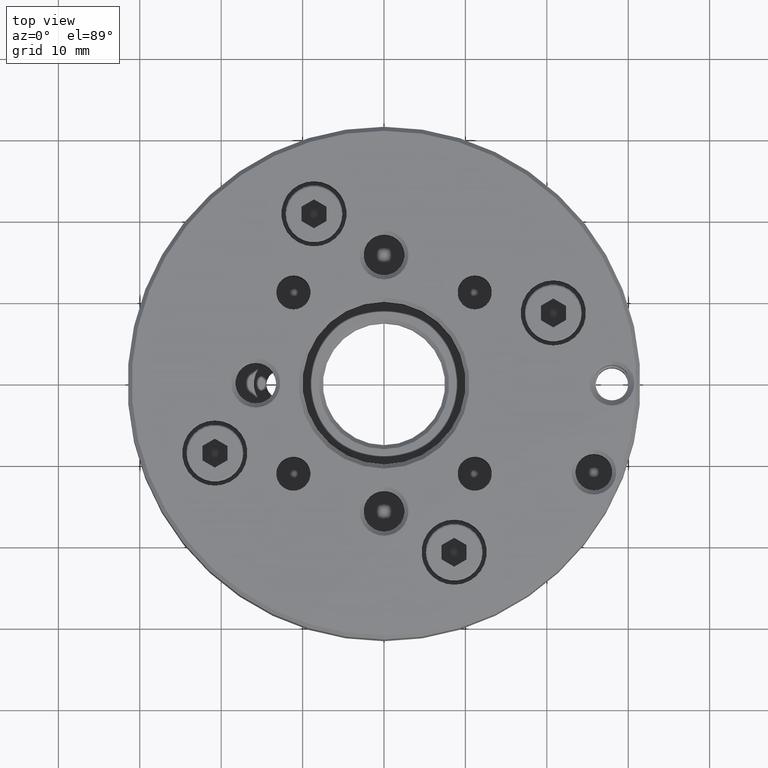
[diagram: clean part render]
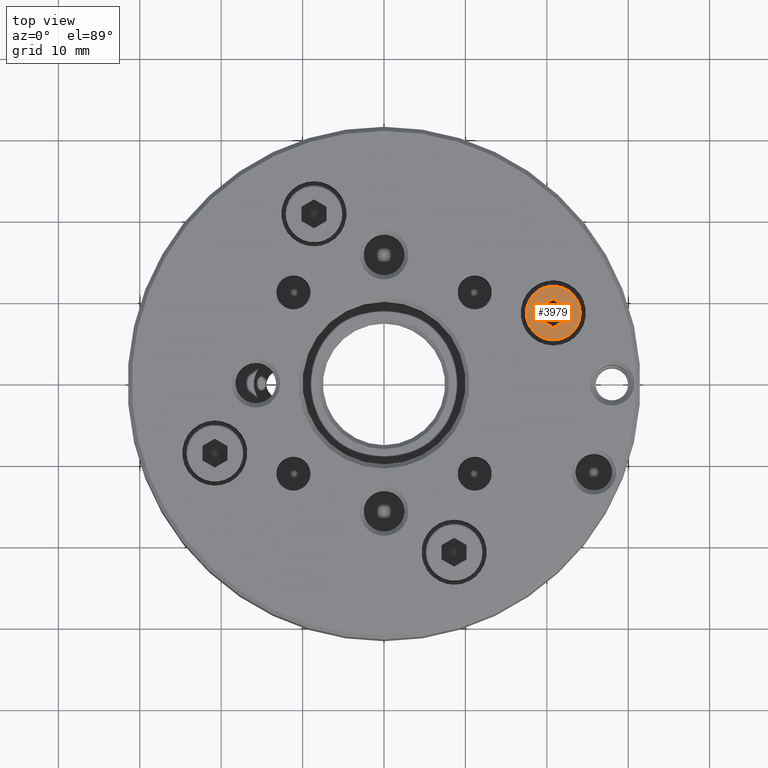
[diagram: same view with one face highlighted and labeled with its STEP entity id]
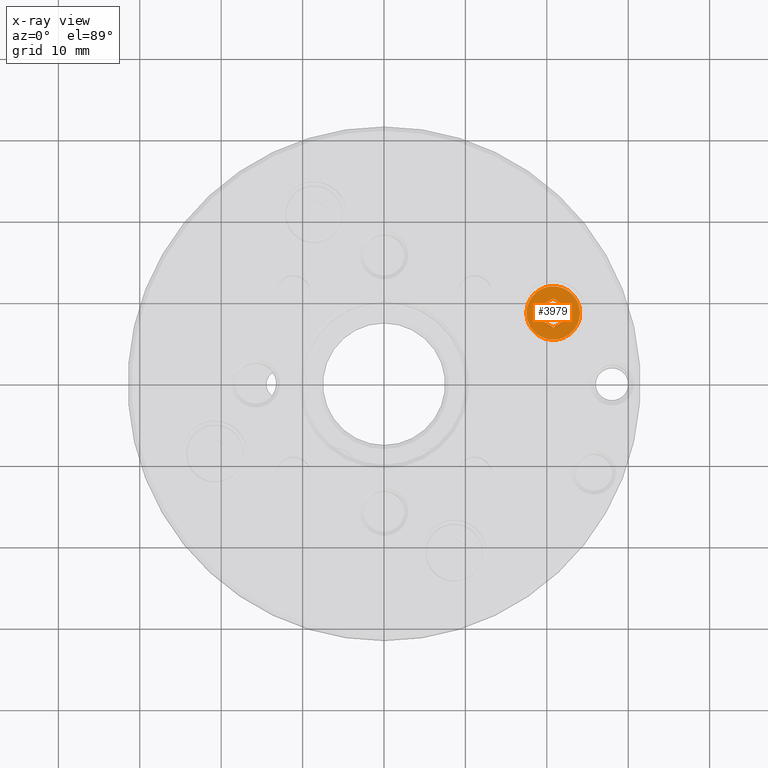
[diagram: x-ray of the same camera — body ghosted, the highlighted face saturated]
A machine part, top view. The second image highlights one B-rep face of the part: STEP entity #3979.
The next image is the same camera in x-ray: the body ghosted, the highlighted face saturated — about 0% of this face is hidden behind the body in this view.
In plain terms, the highlighted planar face has unit normal (-0, -0, -1).
Its self-contained STEP definition (entity closure, byte-faithful):
#156 = VERTEX_POINT ( 'NONE', #5082 ) ;
#312 = DIRECTION ( 'NONE',  ( 0.8660254037844385966, 0.5000000000000001110, -9.614813431917819082E-17 ) ) ;
#404 = DIRECTION ( 'NONE',  ( 0.8660254037844388186, -0.4999999999999996114, -9.614813431917821547E-17 ) ) ;
#473 = CIRCLE ( 'NONE', #5444, 3.300000000000000711 ) ;
#668 = DIRECTION ( 'NONE',  ( 1.000000000000000000, 0.0000000000000000000, 0.0000000000000000000 ) ) ;
#707 = ORIENTED_EDGE ( 'NONE', *, *, #1335, .F. ) ;
#821 = CARTESIAN_POINT ( 'NONE',  ( 19.25178948150396963, 9.496898566555165289, 6.099999999999997868 ) ) ;
#1013 = DIRECTION ( 'NONE',  ( 1.110223024625156540E-16, 3.639924891758125864E-42, 1.000000000000000000 ) ) ;
#1030 = VECTOR ( 'NONE', #404, 1000.000000000000000 ) ;
#1038 = VERTEX_POINT ( 'NONE', #4874 ) ;
#1098 = ORIENTED_EDGE ( 'NONE', *, *, #1667, .T. ) ;
#1230 = EDGE_CURVE ( 'NONE', #3201, #2115, #5042, .T. ) ;
#1335 = EDGE_CURVE ( 'NONE', #156, #1542, #6252, .T. ) ;
#1421 = FACE_OUTER_BOUND ( 'NONE', #4130, .T. ) ;
#1476 = ORIENTED_EDGE ( 'NONE', *, *, #4529, .F. ) ;
#1524 = ORIENTED_EDGE ( 'NONE', *, *, #1639, .T. ) ;
#1542 = VERTEX_POINT ( 'NONE', #2972 ) ;
#1549 = CARTESIAN_POINT ( 'NONE',  ( 20.78728948150396860, 10.38341990489583821, 6.099999999999997868 ) ) ;
#1639 = EDGE_CURVE ( 'NONE', #5673, #1855, #2000, .T. ) ;
#1667 = EDGE_CURVE ( 'NONE', #1855, #5673, #473, .T. ) ;
#1702 = EDGE_CURVE ( 'NONE', #1038, #5080, #5190, .T. ) ;
#1797 = VECTOR ( 'NONE', #2883, 1000.000000000000000 ) ;
#1855 = VERTEX_POINT ( 'NONE', #5321 ) ;
#1986 = CARTESIAN_POINT ( 'NONE',  ( 19.25178948150396963, 7.723855889873823877, 6.099999999999997868 ) ) ;
#2000 = CIRCLE ( 'NONE', #2533, 3.300000000000000711 ) ;
#2115 = VERTEX_POINT ( 'NONE', #4809 ) ;
#2117 = ORIENTED_EDGE ( 'NONE', *, *, #5228, .F. ) ;
#2201 = DIRECTION ( 'NONE',  ( -3.668954571972872844E-16, 1.000000000000000000, 4.073357841744026732E-32 ) ) ;
#2307 = EDGE_LOOP ( 'NONE', ( #1476, #4750, #5711, #2413, #2117, #707 ) ) ;
#2363 = VECTOR ( 'NONE', #5710, 1000.000000000000114 ) ;
#2413 = ORIENTED_EDGE ( 'NONE', *, *, #1702, .F. ) ;
#2533 = AXIS2_PLACEMENT_3D ( 'NONE', #5636, #1013, #3072 ) ;
#2622 = CARTESIAN_POINT ( 'NONE',  ( 20.78728948150396860, 8.610377228214495915, 6.099999999999997868 ) ) ;
#2752 = VECTOR ( 'NONE', #2201, 1000.000000000000000 ) ;
#2791 = CARTESIAN_POINT ( 'NONE',  ( 20.78728948150397215, 6.837334551533154503, 6.099999999999997868 ) ) ;
#2843 = LINE ( 'NONE', #821, #1797 ) ;
#2883 = DIRECTION ( 'NONE',  ( 6.114924286621454082E-16, -1.000000000000000000, -6.788929736482705656E-32 ) ) ;
#2972 = CARTESIAN_POINT ( 'NONE',  ( 22.32278948150396758, 9.496898566555168841, 6.099999999999997868 ) ) ;
#3072 = DIRECTION ( 'NONE',  ( 1.000000000000000000, 0.0000000000000000000, 0.0000000000000000000 ) ) ;
#3169 = DIRECTION ( 'NONE',  ( 1.110223024625156540E-16, 3.639924891758125864E-42, 1.000000000000000000 ) ) ;
#3201 = VERTEX_POINT ( 'NONE', #1986 ) ;
#3516 = PLANE ( 'NONE',  #5910 ) ;
#3614 = VECTOR ( 'NONE', #5799, 1000.000000000000227 ) ;
#3758 = LINE ( 'NONE', #4640, #2363 ) ;
#3832 = VECTOR ( 'NONE', #312, 1000.000000000000114 ) ;
#3838 = LINE ( 'NONE', #2791, #3832 ) ;
#3979 = ADVANCED_FACE ( 'NONE', ( #1421, #5137 ), #3516, .F. ) ;
#4130 = EDGE_LOOP ( 'NONE', ( #1524, #1098 ) ) ;
#4529 = EDGE_CURVE ( 'NONE', #2115, #156, #3838, .T. ) ;
#4605 = CARTESIAN_POINT ( 'NONE',  ( 19.25178948150396963, 7.723855889873823877, 6.099999999999997868 ) ) ;
#4640 = CARTESIAN_POINT ( 'NONE',  ( 22.32278948150396758, 9.496898566555168841, 6.099999999999997868 ) ) ;
#4750 = ORIENTED_EDGE ( 'NONE', *, *, #1230, .F. ) ;
#4769 = CARTESIAN_POINT ( 'NONE',  ( 22.32278948150396758, 7.723855889873827429, 6.099999999999997868 ) ) ;
#4809 = CARTESIAN_POINT ( 'NONE',  ( 20.78728948150397215, 6.837334551533154503, 6.099999999999997868 ) ) ;
#4874 = CARTESIAN_POINT ( 'NONE',  ( 20.78728948150396860, 10.38341990489583821, 6.099999999999997868 ) ) ;
#5037 = DIRECTION ( 'NONE',  ( -1.110223024625156540E-16, -3.639924891758125864E-42, -1.000000000000000000 ) ) ;
#5042 = LINE ( 'NONE', #4605, #1030 ) ;
#5080 = VERTEX_POINT ( 'NONE', #5410 ) ;
#5082 = CARTESIAN_POINT ( 'NONE',  ( 22.32278948150396758, 7.723855889873827429, 6.099999999999997868 ) ) ;
#5137 = FACE_BOUND ( 'NONE', #2307, .T. ) ;
#5190 = LINE ( 'NONE', #1549, #3614 ) ;
#5228 = EDGE_CURVE ( 'NONE', #1542, #1038, #3758, .T. ) ;
#5321 = CARTESIAN_POINT ( 'NONE',  ( 17.48728948150396789, 8.610377228214495915, 6.099999999999997868 ) ) ;
#5410 = CARTESIAN_POINT ( 'NONE',  ( 19.25178948150396963, 9.496898566555165289, 6.099999999999997868 ) ) ;
#5444 = AXIS2_PLACEMENT_3D ( 'NONE', #2622, #3169, #668 ) ;
#5573 = DIRECTION ( 'NONE',  ( 1.000000000000000000, -1.010282105684025507E-58, -1.110223024625156540E-16 ) ) ;
#5636 = CARTESIAN_POINT ( 'NONE',  ( 20.78728948150396860, 8.610377228214495915, 6.099999999999997868 ) ) ;
#5673 = VERTEX_POINT ( 'NONE', #6306 ) ;
#5710 = DIRECTION ( 'NONE',  ( -0.8660254037844385966, 0.4999999999999999445, 9.614813431917819082E-17 ) ) ;
#5711 = ORIENTED_EDGE ( 'NONE', *, *, #6695, .F. ) ;
#5799 = DIRECTION ( 'NONE',  ( -0.8660254037844384856, -0.5000000000000001110, 9.614813431917817849E-17 ) ) ;
#5910 = AXIS2_PLACEMENT_3D ( 'NONE', #6120, #5037, #5573 ) ;
#6120 = CARTESIAN_POINT ( 'NONE',  ( 20.78728948150396860, 8.610377228214495915, 6.099999999999997868 ) ) ;
#6252 = LINE ( 'NONE', #4769, #2752 ) ;
#6306 = CARTESIAN_POINT ( 'NONE',  ( 24.08728948150396931, 8.610377228214495915, 6.099999999999997868 ) ) ;
#6695 = EDGE_CURVE ( 'NONE', #5080, #3201, #2843, .T. ) ;